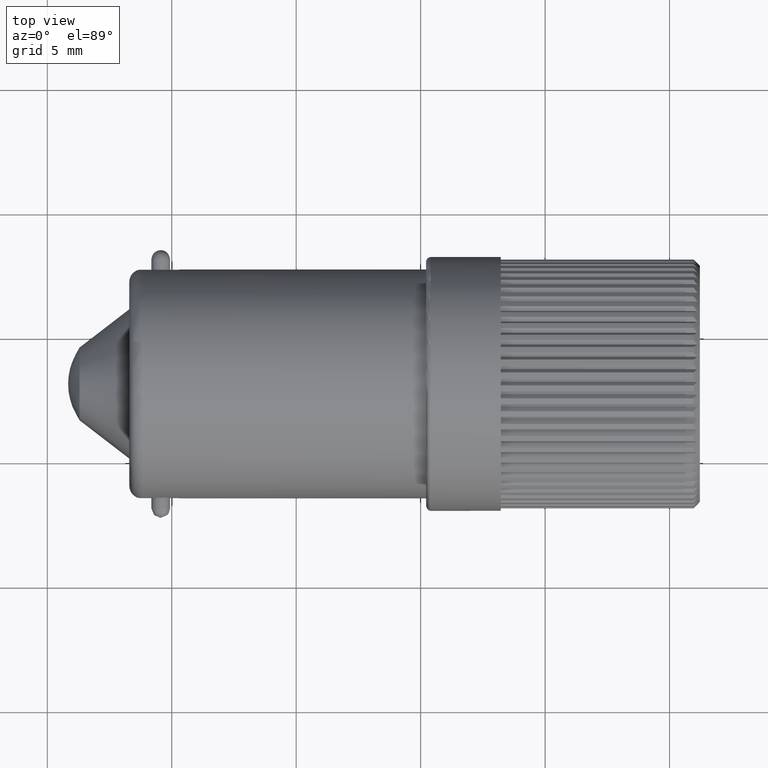
[diagram: clean part render]
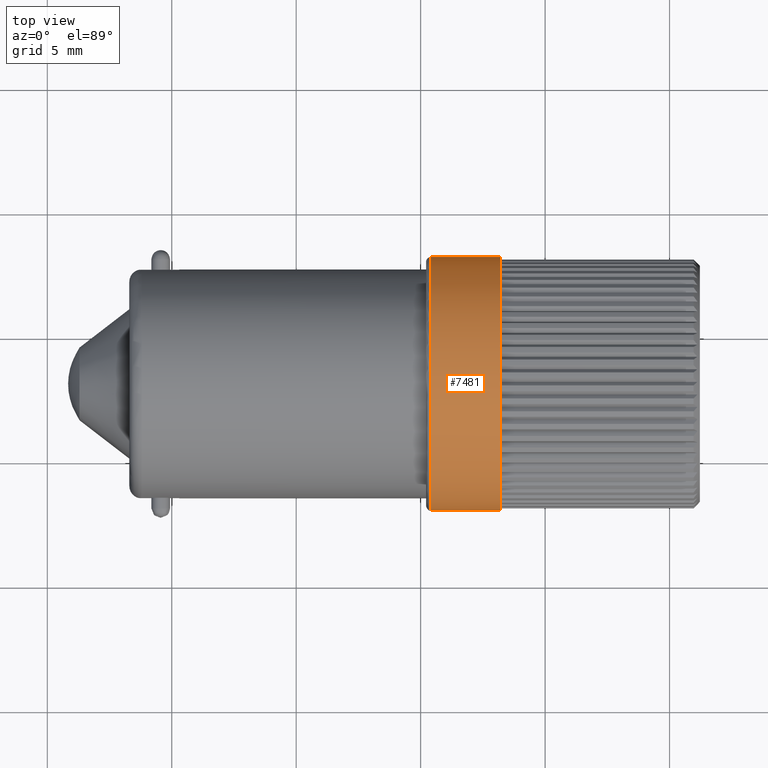
[diagram: same view with one face highlighted and labeled with its STEP entity id]
A machine part, top view. The second image highlights one B-rep face of the part: STEP entity #7481.
In plain terms, the highlighted cylindrical surface (bore or boss wall) has radius 5.1 mm, axis along (1, 0, 0).
Its self-contained STEP definition (entity closure, byte-faithful):
#5088=CARTESIAN_POINT('',(3.217688964935626,8.185023402987302,-0.533095162665026));
#5089=VERTEX_POINT('',#5088);
#5090=CARTESIAN_POINT('',(3.217688964935626,3.112961736609106,0.0));
#5091=DIRECTION('',(1.0,0.0,0.0));
#5092=DIRECTION('',(0.0,1.0,0.0));
#5093=AXIS2_PLACEMENT_3D('',#5090,#5091,#5092);
#5094=CIRCLE('',#5093,5.099999999999997);
#5095=EDGE_CURVE('',#5089,#5089,#5094,.T.);
#7446=CARTESIAN_POINT('',(0.417688964935625,8.212961736609101,-1.249098E-015));
#7447=VERTEX_POINT('',#7446);
#7448=CARTESIAN_POINT('',(0.417688964935625,3.112961736609106,0.0));
#7449=DIRECTION('',(-1.0,0.0,0.0));
#7450=DIRECTION('',(0.0,-1.0,0.0));
#7451=AXIS2_PLACEMENT_3D('',#7448,#7449,#7450);
#7452=CIRCLE('',#7451,5.099999999999996);
#7453=EDGE_CURVE('',#7447,#7447,#7452,.T.);
#7470=CARTESIAN_POINT('',(1.717688964935626,3.112961736609106,0.0));
#7471=DIRECTION('',(1.0,0.0,0.0));
#7472=DIRECTION('',(0.0,1.0,0.0));
#7473=AXIS2_PLACEMENT_3D('',#7470,#7471,#7472);
#7474=CYLINDRICAL_SURFACE('',#7473,5.099999999999996);
#7475=ORIENTED_EDGE('',*,*,#5095,.F.);
#7476=EDGE_LOOP('',(#7475));
#7477=FACE_OUTER_BOUND('',#7476,.T.);
#7478=ORIENTED_EDGE('',*,*,#7453,.F.);
#7479=EDGE_LOOP('',(#7478));
#7480=FACE_BOUND('',#7479,.T.);
#7481=ADVANCED_FACE('',(#7477,#7480),#7474,.T.);